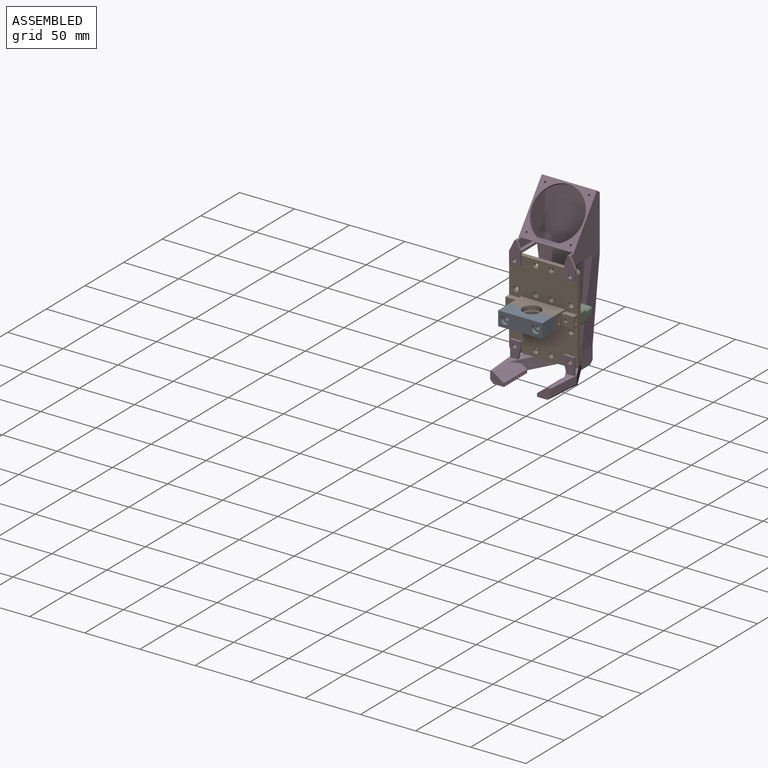
[diagram: assembled view]
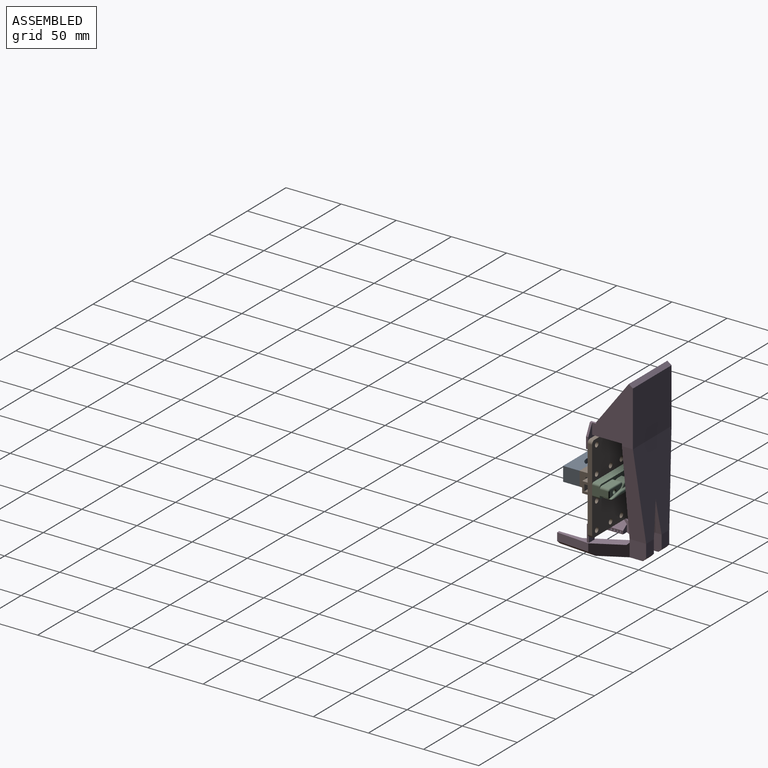
[diagram: assembled view, second angle]
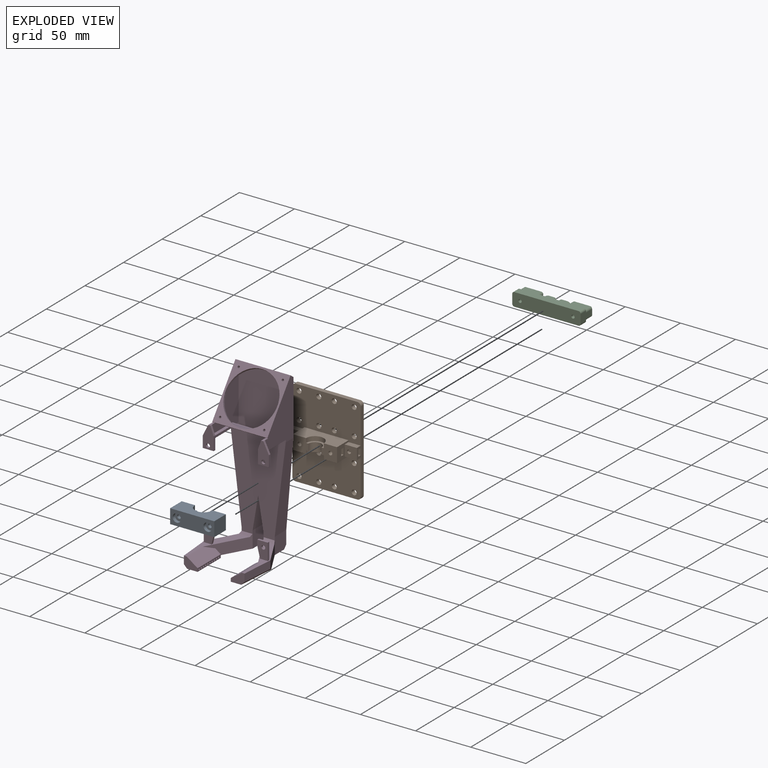
[diagram: exploded view]
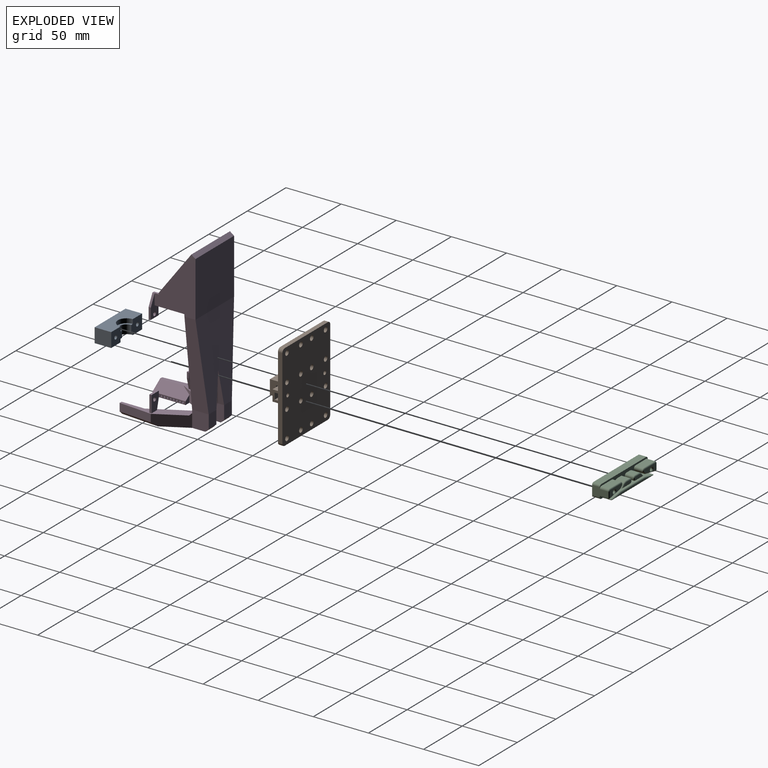
[diagram: exploded view, second angle]
ASSEMBLY  parts=4 mates=5
PART A: 18 faces, bbox 40x15x13 mm
  f0: cylinder r=1.75mm len=12mm, axis (0,1,0), area 131.9mm2, adj f12,f17
  f1: cylinder r=1.75mm len=12mm, axis (0,1,0), area 131.9mm2, adj f13,f15
  f2: plane 15x13mm, normal (1,0,0), area 195mm2, adj f4,f5,f11,f13
  f3: plane 15x13mm, normal (-1,0,0), area 195mm2, adj f4,f5,f11,f12
  f4: plane 40x15mm, normal (0,0,-1), area 499.5mm2, adj f2,f3,f8,f11,f12,f13
  f5: plane 40x15mm, normal (0,0,1), area 499.5mm2, adj f2,f3,f6,f11,f12,f13
  f6: cylinder r=8mm len=16mm, axis (0,0,1), area 100.5mm2, adj f5,f7,f12,f13
  f7: plane 16x8mm, normal (0,0,1), area 44mm2, adj f6,f10,f12,f13
  f8: cylinder r=8mm len=16mm, axis (0,0,-1), area 75.4mm2, adj f4,f9,f12,f13
  f9: plane 16x8mm, normal (0,0,-1), area 44mm2, adj f8,f10,f12,f13
  f10: cylinder r=6mm len=12mm, axis (0,0,-1), area 113.1mm2, adj f7,f9,f12,f13
  f11: plane 40x13mm, normal (0,-1,0), area 431.6mm2, adj f2,f3,f4,f5,f14,f16
  f12: plane 14x13mm, normal (0,1,0), area 158.4mm2, adj f0,f3,f4,f5,f6,f7,f8,f9
  f13: plane 14x13mm, normal (0,1,0), area 158.4mm2, adj f1,f2,f4,f5,f6,f7,f8,f9
  f14: cylinder r=3.75mm len=7.5mm, axis (0,-1,0), area 70.7mm2, adj f11,f15
  f15: plane 7.5x7.5mm, normal (0,-1,0), area 34.6mm2, adj f1,f14
  f16: cylinder r=3.75mm len=7.5mm, axis (0,-1,0), area 70.7mm2, adj f11,f17
  f17: plane 7.5x7.5mm, normal (0,-1,0), area 34.6mm2, adj f0,f16
PART B: 74 faces, bbox 62x19x80 mm
  f0: plane 11x5.8mm, normal (0,-1,0), area 54.2mm2, adj f11,f12,f13,f69,f73
  f1: plane 11x5.8mm, normal (0,1,0), area 54.2mm2, adj f11,f12,f60,f69,f73
  f2: plane 11x5.8mm, normal (0,-1,0), area 54.2mm2, adj f4,f14,f56,f68,f72
  f3: plane 11x5.8mm, normal (0,1,0), area 54.2mm2, adj f4,f14,f15,f68,f72
  f4: plane 5.8x3mm, normal (1,0,0), area 17.4mm2, adj f2,f3,f68,f72
  f5: plane 10x5.8mm, normal (0,1,0), area 48.4mm2, adj f7,f18,f49,f67,f71
  f6: plane 10x5.8mm, normal (0,-1,0), area 48.4mm2, adj f7,f18,f53,f67,f71
  f7: plane 5.8x3mm, normal (-1,0,0), area 17.4mm2, adj f5,f6,f67,f71
  f8: plane 10x5.8mm, normal (0,-1,0), area 48.4mm2, adj f10,f17,f51,f66,f70
  f9: plane 10x5.8mm, normal (0,1,0), area 48.4mm2, adj f10,f17,f19,f66,f70
  f10: plane 5.8x3mm, normal (1,0,0), area 17.4mm2, adj f8,f9,f66,f70
  f11: plane 5.8x3mm, normal (-1,0,0), area 17.4mm2, adj f0,f1,f69,f73
  f12: plane 74x9mm, normal (-1,0,0), area 328.6mm2, adj f0,f1,f16,f20,f39,f58,f59,f61
  f13: cylinder r=1.75mm len=4mm, axis (0,1,0), area 44mm2, adj f0,f39
  f14: plane 74x9mm, normal (1,0,0), area 328.6mm2, adj f2,f3,f16,f20,f39,f54,f55,f57
  f15: cylinder r=1.75mm len=3.5mm, axis (0,1,0), area 22mm2, adj f3,f57
  f16: plane 62x35mm, normal (0,-1,0), area 1978.9mm2, adj f12,f14,f17,f18,f29,f30,f31,f32
  f17: plane 15x13mm, normal (1,0,0), area 127.6mm2, adj f8,f9,f16,f20,f40,f41,f48,f54
  f18: plane 15x13mm, normal (-1,0,0), area 127.6mm2, adj f5,f6,f16,f20,f40,f41,f47,f58
  f19: cylinder r=1.75mm len=5.5mm, axis (0,-1,0), area 60.5mm2, adj f9,f48
  f20: plane 62x35mm, normal (0,-1,0), area 1978.9mm2, adj f12,f14,f17,f18,f21,f22,f23,f24
  f21: plane 56x4mm, normal (0,0,-1), area 224mm2, adj f20,f39,f64,f65
  f22: cylinder r=2.25mm len=4.5mm, axis (0,1,0), area 56.5mm2, adj f20,f39
  f23: cylinder r=2.25mm len=4.5mm, axis (0,1,0), area 56.5mm2, adj f20,f39
  f24: cylinder r=2.25mm len=4.5mm, axis (0,1,0), area 56.5mm2, adj f20,f39
  f25: cylinder r=2.25mm len=4.5mm, axis (0,1,0), area 56.5mm2, adj f20,f39
  f26: cylinder r=2.25mm len=4.5mm, axis (0,1,0), area 56.5mm2, adj f20,f39
  f27: cylinder r=2.25mm len=4.5mm, axis (0,1,0), area 56.5mm2, adj f20,f39
  f28: cylinder r=2.25mm len=4.5mm, axis (0,1,0), area 56.5mm2, adj f20,f39
  f29: cylinder r=2.25mm len=4.5mm, axis (0,1,0), area 56.5mm2, adj f16,f39
  f30: cylinder r=2.25mm len=4.5mm, axis (0,1,0), area 56.5mm2, adj f16,f39
  f31: cylinder r=2.25mm len=4.5mm, axis (0,1,0), area 56.5mm2, adj f16,f39
  f32: cylinder r=2.25mm len=4.5mm, axis (0,1,0), area 56.5mm2, adj f16,f39
  f33: cylinder r=2.25mm len=4.5mm, axis (0,1,0), area 56.5mm2, adj f16,f39
  f34: cylinder r=2.25mm len=4.5mm, axis (0,1,0), area 56.5mm2, adj f16,f39
  f35: cylinder r=2.25mm len=4.5mm, axis (0,1,0), area 56.5mm2, adj f20,f39
  f36: plane 56x4mm, normal (0,0,1), area 224mm2, adj f16,f39,f62,f63
  f37: cylinder r=2.25mm len=4.5mm, axis (0,1,0), area 56.5mm2, adj f16,f39
  f38: cylinder r=2.25mm len=4.5mm, axis (0,1,0), area 56.5mm2, adj f16,f39
  f39: plane 80x62mm, normal (0,1,0), area 4678.6mm2, adj f12,f13,f14,f21,f22,f23,f24,f25
  f40: plane 40x15mm, normal (0,0,-1), area 499.5mm2, adj f17,f18,f20,f44,f47,f48
  f41: plane 40x15mm, normal (0,0,1), area 499.5mm2, adj f16,f17,f18,f42,f47,f48
  f42: cylinder r=8mm len=16mm, axis (0,0,1), area 100.5mm2, adj f41,f43,f47,f48
  f43: plane 16x8mm, normal (0,0,1), area 44mm2, adj f42,f46,f47,f48
  f44: cylinder r=8mm len=16mm, axis (0,0,-1), area 75.4mm2, adj f40,f45,f47,f48
  f45: plane 16x8mm, normal (0,0,-1), area 44mm2, adj f44,f46,f47,f48
  f46: cylinder r=6mm len=12mm, axis (0,0,-1), area 113.1mm2, adj f43,f45,f47,f48
  f47: plane 14x13mm, normal (0,-1,0), area 158.4mm2, adj f18,f40,f41,f42,f43,f44,f45,f46
  f48: plane 14x13mm, normal (0,-1,0), area 158.4mm2, adj f17,f19,f40,f41,f42,f43,f44,f45
  f49: cylinder r=1.75mm len=5.5mm, axis (0,-1,0), area 60.5mm2, adj f5,f47
  f50: plane 3.5x3.5mm, normal (0,-1,0), area 9.6mm2, adj f51
  f51: cylinder r=1.75mm len=6.5mm, axis (0,-1,0), area 71.5mm2, adj f8,f50
  f52: plane 3.5x3.5mm, normal (0,-1,0), area 9.6mm2, adj f53
  f53: cylinder r=1.75mm len=6.5mm, axis (0,-1,0), area 71.5mm2, adj f6,f52
  f54: plane 11x5mm, normal (0,0,-1), area 55mm2, adj f14,f17,f20,f57
  f55: plane 11x5mm, normal (0,0,1), area 55mm2, adj f14,f16,f17,f57
  f56: cylinder r=1.75mm len=4mm, axis (0,1,0), area 44mm2, adj f2,f39
  f57: plane 11x10mm, normal (0,-1,0), area 100.4mm2, adj f14,f15,f17,f54,f55
  f58: plane 11x5mm, normal (0,0,-1), area 55mm2, adj f12,f18,f20,f61
  f59: plane 11x5mm, normal (0,0,1), area 55mm2, adj f12,f16,f18,f61
  f60: cylinder r=1.75mm len=3.5mm, axis (0,1,0), area 22mm2, adj f1,f61
  f61: plane 11x10mm, normal (0,-1,0), area 100.4mm2, adj f12,f18,f58,f59,f60
  f62: cylinder r=3mm len=4mm, axis (0,-1,0), area 18.8mm2, adj f14,f16,f36,f39
  f63: cylinder r=3mm len=4mm, axis (0,1,0), area 18.8mm2, adj f12,f16,f36,f39
  f64: cylinder r=3mm len=4mm, axis (0,-1,0), area 18.8mm2, adj f12,f20,f21,f39
  f65: cylinder r=3mm len=4mm, axis (0,1,0), area 18.8mm2, adj f14,f20,f21,f39
  f66: plane 10x3mm, normal (0,0,1), area 30mm2, adj f8,f9,f10,f17
  f67: plane 10x3mm, normal (0,0,1), area 30mm2, adj f5,f6,f7,f18
  f68: plane 11x3mm, normal (0,0,1), area 33mm2, adj f2,f3,f4,f14
  f69: plane 11x3mm, normal (0,0,1), area 33mm2, adj f0,f1,f11,f12
  f70: plane 10x3mm, normal (0,0,-1), area 30mm2, adj f8,f9,f10,f17
  f71: plane 10x3mm, normal (0,0,-1), area 30mm2, adj f5,f6,f7,f18
  f72: plane 11x3mm, normal (0,0,-1), area 33mm2, adj f2,f3,f4,f14
  f73: plane 11x3mm, normal (0,0,-1), area 33mm2, adj f0,f1,f11,f12
PART C: 92 faces, bbox 62.3x17x12.2 mm
  f0: plane 58.2x14.5mm, normal (0,0,-1), area 809.8mm2, adj f11,f29,f44,f45,f48,f49,f75
  f1: plane 10.93x7.5mm, normal (0.19,0,0.98), area 83.5mm2, adj f29,f39,f44,f76
  f2: plane 30.04x7.5mm, normal (0,0,1), area 225.3mm2, adj f29,f39,f40,f72
  f3: plane 10.93x7.5mm, normal (-0.19,0,0.98), area 83.5mm2, adj f29,f40,f45,f71
  f4: plane 41.14x1mm, normal (0,-1,0), area 36mm2, adj f70,f71,f72,f74,f75,f76
  f5: plane 12.57x7.5mm, normal (-0.19,0,-0.98), area 96mm2, adj f29,f38,f46,f67
  f6: plane 14.5x8.2mm, normal (1,0,0), area 96mm2, adj f11,f29,f30,f46,f49,f50,f68
  f7: plane 13.71x7.5mm, normal (0,0,1), area 102.8mm2, adj f29,f30,f36,f63
  f8: cylinder r=1.5mm len=14.5mm, axis (0,1,0), area 136.7mm2, adj f11,f65
  f9: plane 7.5x0.72mm, normal (-0.77,0,-0.64), area 7mm2, adj f29,f36,f38,f62
  f10: plane 15.71x6.15mm, normal (0,-1,0), area 53.8mm2, adj f61,f62,f63,f64,f65,f66,f67,f68
  f11: plane 62x12mm, normal (0,1,0), area 726.8mm2, adj f0,f6,f8,f12,f24,f27,f48,f49
  f12: plane 58.2x7mm, normal (0,0,1), area 407.4mm2, adj f11,f29,f50,f51
  f13: plane 9.43x2.5mm, normal (0,-1,0), area 20.1mm2, adj f85,f86,f87,f88,f89,f90,f91
  f14: plane 7.5x4.47mm, normal (0,0,1), area 33.5mm2, adj f29,f32,f42,f90
  f15: plane 7.5x2.71mm, normal (0.77,0,0.64), area 26.6mm2, adj f16,f29,f42,f89
  f16: plane 10.58x7.5mm, normal (0,0,-1), area 79.3mm2, adj f15,f29,f31,f87
  f17: plane 7.5x0.5mm, normal (-1,0,0), area 3.8mm2, adj f29,f31,f32,f86
  f18: plane 9.43x2.5mm, normal (0,-1,0), area 20.1mm2, adj f78,f79,f80,f81,f82,f83,f84
  f19: plane 7.5x4.47mm, normal (0,0,1), area 33.5mm2, adj f29,f34,f43,f82
  f20: plane 7.5x0.5mm, normal (1,0,0), area 3.8mm2, adj f29,f33,f34,f78
  f21: plane 10.58x7.5mm, normal (0,0,-1), area 79.3mm2, adj f22,f29,f33,f81
  f22: plane 7.5x2.71mm, normal (-0.77,0,0.64), area 26.6mm2, adj f21,f29,f43,f83
  f23: plane 15.71x6.15mm, normal (0,-1,0), area 53.8mm2, adj f52,f53,f54,f55,f56,f57,f58,f59
  f24: cylinder r=1.5mm len=14.5mm, axis (0,1,0), area 136.7mm2, adj f11,f56
  f25: plane 7.5x0.72mm, normal (0.77,0,-0.64), area 7mm2, adj f29,f37,f41,f54
  f26: plane 12.57x7.5mm, normal (0.19,0,-0.98), area 96mm2, adj f29,f41,f47,f59
  f27: plane 14.5x8.2mm, normal (-1,0,0), area 96mm2, adj f11,f29,f35,f47,f48,f51,f58
  f28: plane 13.71x7.5mm, normal (0,0,1), area 102.8mm2, adj f29,f35,f37,f53
  f29: plane 62x12mm, normal (0,-1,0), area 287.3mm2, adj f0,f1,f2,f3,f5,f6,f7,f9
  f30: cylinder r=2mm len=7.5mm, axis (0,-1,0), area 23.6mm2, adj f6,f7,f29,f66
  f31: cylinder r=2mm len=7.5mm, axis (0,1,0), area 23.6mm2, adj f16,f17,f29,f85
  f32: cylinder r=2mm len=7.5mm, axis (0,1,0), area 23.6mm2, adj f14,f17,f29,f88
  f33: cylinder r=2mm len=7.5mm, axis (0,1,0), area 23.6mm2, adj f20,f21,f29,f79
  f34: cylinder r=2mm len=7.5mm, axis (0,-1,0), area 23.6mm2, adj f19,f20,f29,f80
  f35: cylinder r=2mm len=7.5mm, axis (0,1,0), area 23.6mm2, adj f27,f28,f29,f55
  f36: cylinder r=2mm len=7.5mm, axis (0,-1,0), area 34mm2, adj f7,f9,f29,f61
  f37: cylinder r=2mm len=7.5mm, axis (0,-1,0), area 34mm2, adj f25,f28,f29,f52
  f38: cylinder r=5mm len=7.5mm, axis (0,-1,0), area 25.5mm2, adj f5,f9,f29,f64
  f39: cylinder r=5mm len=7.5mm, axis (0,-1,0), area 7.2mm2, adj f1,f2,f29,f74
  f40: cylinder r=5mm len=7.5mm, axis (0,1,0), area 7.2mm2, adj f2,f3,f29,f70
  f41: cylinder r=5mm len=7.5mm, axis (0,1,0), area 25.5mm2, adj f25,f26,f29,f57
  f42: cylinder r=5mm len=7.5mm, axis (0,1,0), area 32.7mm2, adj f14,f15,f29,f91
  f43: cylinder r=5mm len=7.5mm, axis (0,1,0), area 32.7mm2, adj f19,f22,f29,f84
  f44: cylinder r=0.4mm len=7.5mm, axis (0,-1,0), area 8.9mm2, adj f0,f1,f29,f77
  f45: cylinder r=0.4mm len=7.5mm, axis (0,1,0), area 8.9mm2, adj f0,f3,f29,f73
  f46: cylinder r=1mm len=7.5mm, axis (0,-1,0), area 13.2mm2, adj f5,f6,f29,f69
  f47: cylinder r=1mm len=7.5mm, axis (0,-1,0), area 13.2mm2, adj f26,f27,f29,f60
  f48: cylinder r=1.9mm len=7mm, axis (0,-1,0), area 20.9mm2, adj f0,f11,f27,f29
  f49: cylinder r=1.9mm len=7mm, axis (0,1,0), area 20.9mm2, adj f0,f6,f11,f29
  f50: cylinder r=1.9mm len=7mm, axis (0,-1,0), area 20.9mm2, adj f6,f11,f12,f29
  f51: cylinder r=1.9mm len=7mm, axis (0,1,0), area 20.9mm2, adj f11,f12,f27,f29
  f52: torus R=1mm, axis (0,-1,0), area 5.8mm2, adj f23,f37,f53,f54
  f53: cylinder r=1mm len=13.71mm, axis (1,0,0), area 21.5mm2, adj f23,f28,f52,f55
  f54: cylinder r=1mm len=1.37mm, axis (-0.64,0,-0.77), area 1.5mm2, adj f23,f25,f52,f57
  f55: torus R=1mm, axis (0,-1,0), area 4mm2, adj f23,f35,f53,f58
  f56: torus R=2.5mm, axis (0,-1,0), area 16.9mm2, adj f23,f24,f59
  f57: torus R=4mm, axis (0,-1,0), area 5mm2, adj f23,f41,f54,f59
  f58: cylinder r=1mm len=5.15mm, axis (0,0,1), area 8.1mm2, adj f23,f27,f55,f60
  f59: cylinder r=1mm len=12.76mm, axis (-0.98,0,-0.19), area 18.7mm2, adj f23,f26,f56,f57,f60
  f60: sphere r=1mm, area 1.8mm2, adj f47,f58,f59
  f61: torus R=1mm, axis (0,-1,0), area 5.8mm2, adj f10,f36,f62,f63
  f62: cylinder r=1mm len=1.37mm, axis (-0.64,0,0.77), area 1.5mm2, adj f9,f10,f61,f64
  f63: cylinder r=1mm len=13.71mm, axis (1,0,0), area 21.5mm2, adj f7,f10,f61,f66
  f64: torus R=4mm, axis (0,-1,0), area 5mm2, adj f10,f38,f62,f67
  f65: torus R=2.5mm, axis (0,-1,0), area 16.9mm2, adj f8,f10,f67
  f66: torus R=1mm, axis (0,-1,0), area 4mm2, adj f10,f30,f63,f68
  f67: cylinder r=1mm len=12.76mm, axis (-0.98,0,0.19), area 18.7mm2, adj f5,f10,f64,f65,f69
  f68: cylinder r=1mm len=5.15mm, axis (0,0,-1), area 8.1mm2, adj f6,f10,f66,f69
  f69: sphere r=1mm, area 1.8mm2, adj f46,f67,f68
  f70: torus R=4mm, axis (0,-1,0), area 1.4mm2, adj f4,f40,f71,f72
  f71: cylinder r=1mm len=11.12mm, axis (0.98,0,0.19), area 13.9mm2, adj f3,f4,f70,f73
  f72: cylinder r=1mm len=30.04mm, axis (1,0,0), area 47.2mm2, adj f2,f4,f70,f74
  f73: bspline ~10.43x4.95mm, area 3.4mm2, adj f45,f71,f75
  f74: torus R=4mm, axis (0,-1,0), area 1.4mm2, adj f4,f39,f72,f76
  f75: cylinder r=1mm len=53.66mm, axis (-1,0,0), area 77.1mm2, adj f0,f4,f73,f77
  f76: cylinder r=1mm len=11.12mm, axis (0.98,0,-0.19), area 13.9mm2, adj f1,f4,f74,f77
  f77: bspline ~10.43x4.95mm, area 3.4mm2, adj f44,f75,f76
  f78: cylinder r=1mm len=1mm, axis (0,0,-1), area 0.8mm2, adj f18,f20,f79,f80
  f79: torus R=1mm, axis (0,-1,0), area 4mm2, adj f18,f33,f78,f81
  f80: torus R=1mm, axis (0,-1,0), area 4mm2, adj f18,f34,f78,f82
  f81: cylinder r=1mm len=10.58mm, axis (-1,0,0), area 15.4mm2, adj f18,f21,f79,f83
  f82: cylinder r=1mm len=4.47mm, axis (1,0,0), area 7mm2, adj f18,f19,f80,f84
  f83: cylinder r=1mm len=3.36mm, axis (0.64,0,0.77), area 4.3mm2, adj f18,f22,f81,f84
  f84: torus R=4mm, axis (0,-1,0), area 6.4mm2, adj f18,f43,f82,f83
  f85: torus R=1mm, axis (0,-1,0), area 4mm2, adj f13,f31,f86,f87
  f86: cylinder r=1mm len=1mm, axis (0,0,1), area 0.8mm2, adj f13,f17,f85,f88
  f87: cylinder r=1mm len=10.58mm, axis (-1,0,0), area 15.4mm2, adj f13,f16,f85,f89
  f88: torus R=1mm, axis (0,-1,0), area 4mm2, adj f13,f32,f86,f90
  f89: cylinder r=1mm len=3.36mm, axis (0.64,0,-0.77), area 4.3mm2, adj f13,f15,f87,f91
  f90: cylinder r=1mm len=4.47mm, axis (1,0,0), area 7mm2, adj f13,f14,f88,f91
  f91: torus R=4mm, axis (0,-1,0), area 6.4mm2, adj f13,f42,f89,f90
PART D: 179 faces, bbox 60x72x147.6 mm
  f0: plane 15x9.5mm, normal (0,1,0), area 120.4mm2, adj f1,f33,f171,f176,f177,f178
  f1: plane 15x2mm, normal (1,0,0), area 30mm2, adj f0,f33,f45,f177
  f2: plane 15x9.5mm, normal (0,-1,0), area 120.4mm2, adj f3,f10,f172,f173,f174,f175
  f3: plane 15x2mm, normal (-1,0,0), area 30mm2, adj f2,f10,f44,f173
  f4: plane 67.59x20.87mm, normal (0,0,1), area 551.8mm2, adj f63,f68,f69,f73,f82,f84,f85,f93
  f5: plane 46x23mm, normal (0,-0.4,-0.92), area 1125mm2, adj f20,f49,f50,f51,f54,f55,f56,f153
  f6: plane 52.6x37mm, normal (-1,0,0), area 1156.3mm2, adj f20,f23,f46,f47,f52,f53,f153,f154
  f7: plane 52.6x37mm, normal (1,0,0), area 1156.3mm2, adj f20,f24,f46,f47,f57,f58,f153,f154
  f8: plane 12.5x10mm, normal (0,-1,0), area 85.5mm2, adj f9,f15,f33,f35,f37,f40
  f9: plane 69x22.38mm, normal (0,0,-1), area 705.1mm2, adj f8,f14,f15,f19,f28,f30,f31,f39
  f10: plane 55x23.89mm, normal (0,0,1), area 371mm2, adj f2,f3,f11,f12,f29,f32,f36,f42
  f11: plane 12.5x10mm, normal (0,-1,0), area 85.5mm2, adj f10,f12,f13,f16,f36,f41
  f12: plane 30x10mm, normal (0.57,0,0.82), area 338.7mm2, adj f10,f11,f13,f32,f34
  f13: plane 30x3mm, normal (1,0,0), area 72.3mm2, adj f11,f12,f16,f34,f101,f103,f105,f107
  f14: plane 6.5x5mm, normal (0,1,0), area 23.8mm2, adj f9,f15,f31,f35
  f15: plane 30x3mm, normal (-1,0,0), area 72.3mm2, adj f8,f9,f14,f35,f122,f124,f126,f128
  f16: plane 69x22.38mm, normal (0,0,-1), area 705.1mm2, adj f11,f13,f18,f26,f29,f32,f34,f38
  f17: plane 12x10mm, normal (0,1,0), area 120mm2, adj f19,f25,f28,f39
  f18: plane 15x15mm, normal (1,0,0), area 220.5mm2, adj f16,f20,f22,f27,f32,f38
  f19: plane 15x15mm, normal (-1,0,0), area 220.5mm2, adj f9,f17,f20,f21,f31,f39
  f20: plane 85x50mm, normal (0,-1,0), area 3210mm2, adj f5,f6,f7,f18,f19,f21,f22,f23
  f21: plane 30x15mm, normal (-0.99,0,-0.16), area 427.7mm2, adj f19,f20,f22,f25
  f22: plane 30x15mm, normal (0.99,0,-0.16), area 427.7mm2, adj f18,f20,f21,f25
  f23: plane 80x15mm, normal (-0.99,0,-0.12), area 1007.8mm2, adj f6,f20,f25,f26
  f24: plane 80x15mm, normal (0.99,0,-0.12), area 1007.8mm2, adj f7,f20,f25,f28
  f25: plane 80x50mm, normal (0,1,0.06), area 3056mm2, adj f17,f21,f22,f23,f24,f27,f46
  f26: plane 15x15mm, normal (-1,0,0), area 220.5mm2, adj f16,f20,f23,f27,f29,f38
  f27: plane 12x10mm, normal (0,1,0), area 120mm2, adj f18,f25,f26,f38
  f28: plane 15x15mm, normal (1,0,0), area 220.5mm2, adj f9,f17,f20,f24,f30,f39
  f29: plane 27x15mm, normal (-0.87,0.49,0), area 303.1mm2, adj f10,f16,f26,f36,f41,f42
  f30: plane 27x15mm, normal (0.87,0.49,0), area 303.1mm2, adj f9,f28,f33,f37,f40,f43
  f31: plane 36x20mm, normal (-0.87,-0.49,0), area 329.2mm2, adj f9,f14,f19,f33,f35,f43
  f32: plane 36x20mm, normal (0.87,-0.49,0), area 329.2mm2, adj f10,f12,f16,f18,f34,f42
  f33: plane 55x23.89mm, normal (0,0,1), area 371mm2, adj f0,f1,f8,f30,f31,f35,f37,f43
  f34: plane 6.5x5mm, normal (0,1,0), area 23.8mm2, adj f12,f13,f16,f32
  f35: plane 30x10mm, normal (-0.57,0,0.82), area 338.7mm2, adj f8,f14,f15,f31,f33
  f36: plane 30x7mm, normal (-1,-0.08,0), area 210.7mm2, adj f10,f11,f29,f41
  f37: plane 30x7mm, normal (1,-0.08,0), area 210.7mm2, adj f8,f30,f33,f40
  f38: plane 10x3mm, normal (0,0.71,-0.71), area 42.4mm2, adj f16,f18,f26,f27
  f39: plane 10x3mm, normal (0,0.71,-0.71), area 42.4mm2, adj f9,f17,f19,f28
  f40: plane 34.71x5.51mm, normal (0.7,-0.06,-0.71), area 137.8mm2, adj f8,f9,f30,f37
  f41: plane 34.71x5.51mm, normal (-0.7,-0.06,-0.71), area 137.8mm2, adj f11,f16,f29,f36
  f42: plane 11.11x2mm, normal (0,-0.71,0.71), area 28.3mm2, adj f10,f20,f29,f32
  f43: plane 11.11x2mm, normal (0,-0.71,0.71), area 28.3mm2, adj f20,f30,f31,f33
  f44: plane 15x9.5mm, normal (0,1,0), area 120.4mm2, adj f3,f10,f172,f173,f174,f175
  f45: plane 15x9.5mm, normal (0,-1,0), area 120.4mm2, adj f1,f33,f171,f176,f177,f178
  f46: plane 50x49.81mm, normal (0,1,0), area 2490.5mm2, adj f6,f7,f25,f47
  f47: plane 50x3.71mm, normal (0,0.6,0.8), area 232mm2, adj f6,f7,f46,f154
  f48: cylinder r=23.5mm len=47mm, axis (0,-0.8,0.6), area 295.3mm2, adj f59,f154
  f49: plane 29x12.07mm, normal (1,0,0), area 73.6mm2, adj f5,f50,f53,f155,f156,f159,f161
  f50: plane 22.43x3mm, normal (0,0,1), area 67.3mm2, adj f5,f49,f51,f162
  f51: plane 22.43x8.07mm, normal (1,0,0), area 106.7mm2, adj f5,f50,f52,f162
  f52: plane 6x2mm, normal (0,0,1), area 12mm2, adj f6,f51,f153,f156,f157,f161
  f53: plane 27x5mm, normal (0,0,-1), area 135mm2, adj f6,f20,f49,f155
  f54: plane 22.43x8.07mm, normal (-1,0,0), area 106.7mm2, adj f5,f55,f57,f170
  f55: plane 22.43x3mm, normal (0,0,1), area 67.3mm2, adj f5,f54,f56,f170
  f56: plane 29x12.07mm, normal (-1,0,0), area 73.6mm2, adj f5,f55,f58,f163,f164,f165,f169
  f57: plane 6x2mm, normal (0,0,1), area 12mm2, adj f7,f54,f153,f164,f167,f169
  f58: plane 27x5mm, normal (0,0,-1), area 135mm2, adj f7,f20,f56,f163
  f59: plane 48x38.12mm, normal (0,0.8,-0.6), area 477.8mm2, adj f48,f60,f61,f62,f99,f145,f147,f149
  f60: plane 50.54x30.44mm, normal (-1,0,0), area 821.1mm2, adj f59,f61,f74,f78,f98,f99,f100
  f61: plane 48x21.65mm, normal (0,0.4,0.92), area 1134.4mm2, adj f59,f60,f62,f100
  f62: plane 50.54x30.44mm, normal (1,0,0), area 821.1mm2, adj f59,f61,f74,f77,f98,f99,f100
  f63: plane 10.58x8mm, normal (0,1,0), area 51.3mm2, adj f4,f69,f87,f89,f91,f94
  f64: plane 54.41x21.95mm, normal (0,0,-1), area 283.4mm2, adj f65,f66,f83,f86,f90,f96
  f65: plane 10.58x8mm, normal (0,1,0), area 51.3mm2, adj f64,f66,f67,f70,f90,f95
  f66: plane 28x9.32mm, normal (-0.57,0,-0.82), area 304mm2, adj f64,f65,f67,f86,f88
  f67: plane 28x1.48mm, normal (-1,0,0), area 25.7mm2, adj f65,f66,f70,f88,f101,f103,f105,f107
  f68: plane 5.7x5.47mm, normal (0,-1,0), area 19.8mm2, adj f4,f69,f85,f89
  f69: plane 28x1.48mm, normal (1,0,0), area 25.7mm2, adj f4,f63,f68,f89,f122,f124,f126,f128
  f70: plane 67.59x20.87mm, normal (0,0,1), area 551.8mm2, adj f65,f67,f72,f80,f83,f86,f88,f92
  f71: plane 11.55x8mm, normal (0,-1,0), area 92.4mm2, adj f73,f79,f82,f93
  f72: plane 14.08x13.74mm, normal (-1,0,0), area 187.7mm2, adj f70,f74,f76,f79,f81,f86,f92,f96
  f73: plane 14.08x13.74mm, normal (1,0,0), area 187.7mm2, adj f4,f71,f74,f75,f79,f85,f93,f97
  f74: plane 86.41x48mm, normal (0,1,0), area 3020.4mm2, adj f60,f62,f72,f73,f75,f76,f77,f78
  f75: plane 36x12.99mm, normal (0.99,0,0.16), area 433.1mm2, adj f73,f74,f76,f79
  f76: plane 36x12.99mm, normal (-0.99,0,0.16), area 433.1mm2, adj f72,f74,f75,f79
  f77: plane 80x12.99mm, normal (0.99,0,0.12), area 846.1mm2, adj f62,f74,f79,f80,f98
  f78: plane 80x12.99mm, normal (-0.99,0,0.12), area 846.1mm2, adj f60,f74,f79,f82,f98
  f79: plane 80x47.98mm, normal (0,-1,-0.06), area 2826.3mm2, adj f71,f72,f73,f75,f76,f77,f78,f80
  f80: plane 14.26x14.06mm, normal (1,0,0), area 192.4mm2, adj f70,f74,f77,f79,f81,f83,f92,f96
  f81: plane 11.55x8mm, normal (0,-1,0), area 92.4mm2, adj f72,f79,f80,f92
  f82: plane 14.26x14.06mm, normal (-1,0,0), area 192.4mm2, adj f4,f71,f74,f78,f79,f84,f93,f97
  f83: plane 26.96x14.98mm, normal (0.87,-0.49,0), area 242.5mm2, adj f64,f70,f80,f90,f95,f96
  f84: plane 26.96x14.98mm, normal (-0.87,-0.49,0), area 242.5mm2, adj f4,f82,f87,f91,f94,f97
  f85: plane 34.77x19.32mm, normal (0.87,0.49,0), area 270mm2, adj f4,f68,f73,f87,f89,f97
  f86: plane 34.77x19.32mm, normal (-0.87,0.49,0), area 270mm2, adj f64,f66,f70,f72,f88,f96
  f87: plane 54.41x21.95mm, normal (0,0,-1), area 283.4mm2, adj f63,f84,f85,f89,f91,f97
  f88: plane 5.7x5.47mm, normal (0,-1,0), area 19.8mm2, adj f66,f67,f70,f86
  f89: plane 28x9.32mm, normal (0.57,0,-0.82), area 304mm2, adj f63,f68,f69,f85,f87
  f90: plane 28.78x5.59mm, normal (1,0.08,0), area 161.3mm2, adj f64,f65,f83,f95
  f91: plane 28.78x5.59mm, normal (-1,0.08,0), area 161.3mm2, adj f63,f84,f87,f94
  f92: plane 8x2.41mm, normal (0,-0.71,0.71), area 27.3mm2, adj f70,f72,f80,f81
  f93: plane 8x2.41mm, normal (0,-0.71,0.71), area 27.3mm2, adj f4,f71,f73,f82
  f94: plane 32.57x4.82mm, normal (-0.7,0.06,0.71), area 105.1mm2, adj f4,f63,f84,f91
  f95: plane 32.57x4.82mm, normal (0.7,0.06,0.71), area 105.1mm2, adj f65,f70,f83,f90
  f96: plane 8.74x2.59mm, normal (0,0.71,-0.71), area 28.6mm2, adj f64,f72,f74,f80,f83,f86
  f97: plane 8.74x2.59mm, normal (0,0.71,-0.71), area 28.6mm2, adj f73,f74,f82,f84,f85,f87
  f98: plane 49.34x48mm, normal (0,-1,0), area 2361.7mm2, adj f60,f62,f77,f78,f79,f99,f145,f146
  f99: plane 48x1.71mm, normal (0,-0.6,-0.8), area 102.8mm2, adj f59,f60,f62,f98
  f100: plane 48x0.79mm, normal (0,0,1), area 38mm2, adj f60,f61,f62,f74
  f101: cylinder r=0.75mm len=2mm, axis (1,0,0), area 6mm2, adj f13,f67,f70,f102
  f102: plane 1.12x0.25mm, normal (1,0,0), area 0.2mm2, adj f70,f101
  f103: cylinder r=0.75mm len=2mm, axis (1,0,0), area 6mm2, adj f13,f67,f70,f104
  f104: plane 1.12x0.25mm, normal (1,0,0), area 0.2mm2, adj f70,f103
  f105: cylinder r=0.75mm len=2mm, axis (1,0,0), area 6mm2, adj f13,f67,f70,f106
  f106: plane 1.12x0.25mm, normal (1,0,0), area 0.2mm2, adj f70,f105
  f107: cylinder r=0.75mm len=2mm, axis (1,0,0), area 6mm2, adj f13,f67,f70,f108
  f108: plane 1.12x0.25mm, normal (1,0,0), area 0.2mm2, adj f70,f107
  f109: cylinder r=0.75mm len=2mm, axis (1,0,0), area 6mm2, adj f13,f67,f70,f110
  f110: plane 1.12x0.25mm, normal (1,0,0), area 0.2mm2, adj f70,f109
  f111: cylinder r=0.75mm len=2mm, axis (1,0,0), area 6mm2, adj f13,f67,f70,f112
  f112: plane 1.12x0.25mm, normal (1,0,0), area 0.2mm2, adj f70,f111
  f113: cylinder r=0.75mm len=2mm, axis (1,0,0), area 6mm2, adj f13,f67,f70,f114
  f114: plane 1.12x0.25mm, normal (1,0,0), area 0.2mm2, adj f70,f113
  f115: cylinder r=0.75mm len=2mm, axis (1,0,0), area 6mm2, adj f13,f67,f70,f116
  f116: plane 1.12x0.25mm, normal (1,0,0), area 0.2mm2, adj f70,f115
  f117: cylinder r=0.75mm len=2mm, axis (1,0,0), area 6mm2, adj f13,f67,f70,f118
  f118: plane 1.12x0.25mm, normal (1,0,0), area 0.2mm2, adj f70,f117
  f119: cylinder r=0.75mm len=2mm, axis (1,0,0), area 6mm2, adj f13,f67,f70,f120
  f120: plane 1.12x0.25mm, normal (1,0,0), area 0.2mm2, adj f70,f119
  f121: plane 1.12x0.25mm, normal (-1,0,0), area 0.2mm2, adj f4,f122
  f122: cylinder r=0.75mm len=2mm, axis (-1,0,0), area 6mm2, adj f4,f15,f69,f121
  f123: plane 1.12x0.25mm, normal (-1,0,0), area 0.2mm2, adj f4,f124
  f124: cylinder r=0.75mm len=2mm, axis (-1,0,0), area 6mm2, adj f4,f15,f69,f123
  f125: plane 1.12x0.25mm, normal (-1,0,0), area 0.2mm2, adj f4,f126
  f126: cylinder r=0.75mm len=2mm, axis (-1,0,0), area 6mm2, adj f4,f15,f69,f125
  f127: plane 1.12x0.25mm, normal (-1,0,0), area 0.2mm2, adj f4,f128
  f128: cylinder r=0.75mm len=2mm, axis (-1,0,0), area 6mm2, adj f4,f15,f69,f127
  f129: plane 1.12x0.25mm, normal (-1,0,0), area 0.2mm2, adj f4,f130
  f130: cylinder r=0.75mm len=2mm, axis (-1,0,0), area 6mm2, adj f4,f15,f69,f129
  f131: plane 1.12x0.25mm, normal (-1,0,0), area 0.2mm2, adj f4,f132
  f132: cylinder r=0.75mm len=2mm, axis (-1,0,0), area 6mm2, adj f4,f15,f69,f131
  f133: plane 1.12x0.25mm, normal (-1,0,0), area 0.2mm2, adj f4,f134
  f134: cylinder r=0.75mm len=2mm, axis (-1,0,0), area 6mm2, adj f4,f15,f69,f133
  f135: plane 1.12x0.25mm, normal (-1,0,0), area 0.2mm2, adj f4,f136
  f136: cylinder r=0.75mm len=2mm, axis (-1,0,0), area 6mm2, adj f4,f15,f69,f135
  f137: plane 1.12x0.25mm, normal (-1,0,0), area 0.2mm2, adj f4,f138
  f138: cylinder r=0.75mm len=2mm, axis (-1,0,0), area 6mm2, adj f4,f15,f69,f137
  f139: plane 1.12x0.25mm, normal (-1,0,0), area 0.2mm2, adj f4,f140
  f140: cylinder r=0.75mm len=2mm, axis (-1,0,0), area 6mm2, adj f4,f15,f69,f139
  f141: cylinder r=1mm len=6mm, axis (0,-0.8,0.6), area 37.7mm2, adj f152,f154
  f142: cylinder r=1mm len=6mm, axis (0,-0.8,0.6), area 37.7mm2, adj f146,f154
  f143: cylinder r=1mm len=6mm, axis (0,-0.8,0.6), area 37.7mm2, adj f148,f154
  f144: cylinder r=1mm len=6mm, axis (0,-0.8,0.6), area 37.7mm2, adj f150,f154
  f145: cylinder r=2.5mm len=6.4mm, axis (0,-0.8,0.6), area 60.7mm2, adj f59,f98,f146
  f146: plane 5x3.22mm, normal (0,0.8,-0.6), area 13.8mm2, adj f98,f142,f145
  f147: cylinder r=2.5mm len=6.4mm, axis (0,-0.8,0.6), area 62.8mm2, adj f59,f148
  f148: plane 5x3.99mm, normal (0,0.8,-0.6), area 16.5mm2, adj f143,f147
  f149: cylinder r=2.5mm len=6.4mm, axis (0,-0.8,0.6), area 62.8mm2, adj f59,f150
  f150: plane 5x3.99mm, normal (0,0.8,-0.6), area 16.5mm2, adj f144,f149
  f151: cylinder r=2.5mm len=6.4mm, axis (0,-0.8,0.6), area 60.7mm2, adj f59,f98,f152
  f152: plane 5x3.22mm, normal (0,0.8,-0.6), area 13.8mm2, adj f98,f141,f151
  f153: plane 50x0.8mm, normal (0,-0.6,-0.8), area 50mm2, adj f5,f6,f7,f52,f57,f154
  f154: plane 50x39.93mm, normal (0,-0.8,0.6), area 752.5mm2, adj f6,f7,f47,f48,f141,f142,f143,f144
  f155: plane 20.14x10mm, normal (0,1,0), area 116.3mm2, adj f6,f49,f53,f157,f158,f159,f160
  f156: plane 8.07x3mm, normal (0.94,0,0.35), area 17.2mm2, adj f49,f52,f161,f162
  f157: plane 10.07x5mm, normal (-0.9,0,0.44), area 22.5mm2, adj f52,f155,f158,f161
  f158: plane 10.07x2mm, normal (-1,0,0), area 20.1mm2, adj f155,f157,f159,f161
  f159: plane 10x2mm, normal (0,0,-1), area 20mm2, adj f49,f155,f158,f161
  f160: cylinder r=1.75mm len=3.5mm, axis (0,1,0), area 22mm2, adj f155,f161
  f161: plane 20.14x10mm, normal (0,-1,0), area 154.5mm2, adj f49,f52,f156,f157,f158,f159,f160
  f162: plane 8.07x3mm, normal (0,1,0), area 12.1mm2, adj f50,f51,f156
  f163: plane 20.14x10mm, normal (0,1,0), area 116.3mm2, adj f7,f56,f58,f165,f166,f167,f168
  f164: plane 8.07x3mm, normal (-0.94,0,0.35), area 17.2mm2, adj f56,f57,f169,f170
  f165: plane 10x2mm, normal (0,0,-1), area 20mm2, adj f56,f163,f166,f169
  f166: plane 10.07x2mm, normal (1,0,0), area 20.1mm2, adj f163,f165,f167,f169
  f167: plane 10.07x5mm, normal (0.9,0,0.44), area 22.5mm2, adj f57,f163,f166,f169
  f168: cylinder r=1.75mm len=3.5mm, axis (0,1,0), area 22mm2, adj f163,f169
  f169: plane 20.14x10mm, normal (0,-1,0), area 154.5mm2, adj f56,f57,f164,f165,f166,f167,f168
  f170: plane 8.07x3mm, normal (0,1,0), area 12.1mm2, adj f54,f55,f164
  f171: cylinder r=1.75mm len=3.5mm, axis (0,-1,0), area 22mm2, adj f0,f45
  f172: cylinder r=1.75mm len=3.5mm, axis (0,-1,0), area 22mm2, adj f2,f44
  f173: plane 9.5x2mm, normal (0,0,1), area 19mm2, adj f2,f3,f44,f174
  f174: plane 5x2mm, normal (1,0,0), area 10mm2, adj f2,f44,f173,f175
  f175: plane 10x2.5mm, normal (0.97,0,-0.24), area 20.6mm2, adj f2,f10,f44,f174
  f176: plane 5x2mm, normal (-1,0,0), area 10mm2, adj f0,f45,f177,f178
  f177: plane 9.5x2mm, normal (0,0,1), area 19mm2, adj f0,f1,f45,f176
  f178: plane 10x2.5mm, normal (-0.97,0,-0.24), area 20.6mm2, adj f0,f33,f45,f176
PLACE A t=(75.15,58.03,2.06)mm
PLACE B t=(75.15,62.03,2.06)mm
PLACE C rot(axis=(0,0,1),180deg) t=(75.15,69.03,2.06)mm
PLACE D t=(75.39,85.03,2.06)mm
MATE parallel B.f13 <-> C.f8  axis (0,1,0) through (51.15,62.03,2.06)mm
MATE fastened C.f8 <-> B.f13  axis (0,-1,0) through (51.15,62.03,2.06)mm
MATE fastened A.f0 <-> B.f49  axis (0,1,0) through (61.15,43.03,2.06)mm
MATE parallel D.f160 <-> B.f31  axis (0,1,0) through (50.15,58.03,37.06)mm
MATE fastened B.f31 <-> D.f160  axis (0,-1,0) through (50.15,58.03,37.06)mm
